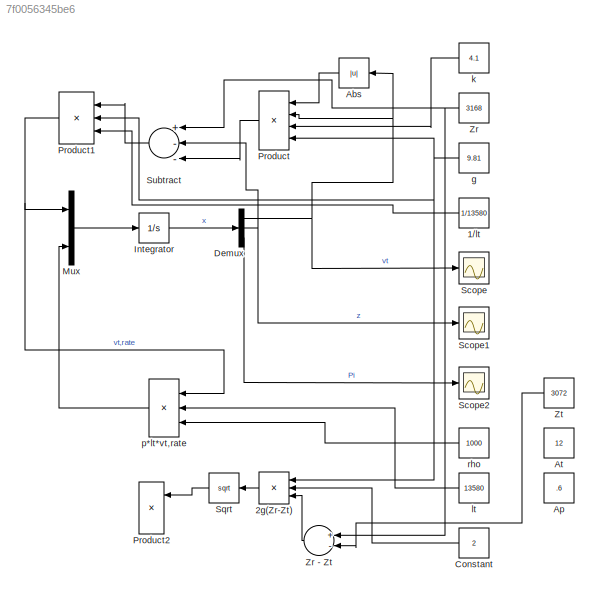
MODEL slx_7f0056345be6
KIND model
CONFIG AbsTol = auto
CONFIG FixedStep = auto
CONFIG MaxStep = auto
CONFIG MinStep = auto
CONFIG RelTol = 1e-3
CONFIG SampleTimeConstraint = Unconstrained
CONFIG Solver = ode45
CONFIG SolverMode = Auto
CONFIG SolverName = ode45
CONFIG StartTime = 0.0
CONFIG StopTime = 10.0
BLOCK [Constant] 1//lt
  Value = 1/13580
BLOCK [Product] 2g(Zr-Zt)
  InputSameDT = off
  Inputs = 3
  OutDataTypeStr = Inherit: Inherit via internal rule
  Ports = [3, 1]
  RndMeth = Floor
  SaturateOnIntegerOverflow = off
BLOCK [Abs] Abs
  SaturateOnIntegerOverflow = off
BLOCK [Constant] Ap
  Value = .6
BLOCK [Constant] At
  Value = 12
BLOCK [Constant] Constant
  Value = 2
BLOCK [Demux] Demux
  DisplayOption = bar
  Outputs = 3
  Ports = [1, 3]
BLOCK [Integrator] Integrator
  Ports = [1, 1]
BLOCK [Mux] Mux
  DisplayOption = bar
  Inputs = 3
  Ports = [3, 1]
BLOCK [Product] Product
  InputSameDT = off
  Inputs = 4
  OutDataTypeStr = Inherit: Inherit via internal rule
  Ports = [4, 1]
  RndMeth = Floor
  SaturateOnIntegerOverflow = off
BLOCK [Product] Product1
  InputSameDT = off
  Inputs = 3
  OutDataTypeStr = Inherit: Inherit via internal rule
  Ports = [3, 1]
  RndMeth = Floor
  SaturateOnIntegerOverflow = off
BLOCK [Product] Product2
  InputSameDT = off
  Inputs = 3
  OutDataTypeStr = Inherit: Inherit via internal rule
  Ports = [3, 1]
  RndMeth = Floor
  SaturateOnIntegerOverflow = off
BLOCK [Scope] Scope
  Floating = off
  NumInputPorts = 1
  Ports = [1]
BLOCK [Scope] Scope1
  Floating = off
  NumInputPorts = 1
  Ports = [1]
  SaveName = ScopeData1
BLOCK [Scope] Scope2
  Floating = off
  NumInputPorts = 1
  Ports = [1]
  SaveName = ScopeData2
BLOCK [Sqrt] Sqrt
BLOCK [Sum] Subtract
  InputSameDT = off
  Inputs = +--
  OutDataTypeStr = Inherit: Inherit via internal rule
  Ports = [3, 1]
  SaturateOnIntegerOverflow = off
BLOCK [Constant] Zr
  Value = 3168
BLOCK [Sum] Zr - Zt
  InputSameDT = off
  Inputs = +-
  OutDataTypeStr = Inherit: Inherit via internal rule
  Ports = [2, 1]
  SaturateOnIntegerOverflow = off
BLOCK [Constant] Zt
  Value = 3072
BLOCK [Constant] g
  Value = 9.81
BLOCK [Constant] k
  Value = 4.1
BLOCK [Constant] lt
  Value = 13580
BLOCK [Product] p*lt*vt,rate
  InputSameDT = off
  Inputs = 3
  OutDataTypeStr = Inherit: Inherit via internal rule
  Ports = [3, 1]
  RndMeth = Floor
  SaturateOnIntegerOverflow = off
BLOCK [Constant] rho
  Value = 1000
LINE 1//lt:1 -> Product1:3
LINE 2g(Zr-Zt):1 -> Sqrt:1
LINE Abs:1 -> Product:1
LINE Constant:1 -> 2g(Zr-Zt):2
NET Demux:1 -> Abs:1, Product:2, Scope:1
NET Demux:2 -> Scope1:1, Subtract:2
LINE Demux:3 -> Scope2:1
LINE Integrator:1 -> Demux:1
LINE Mux:1 -> Integrator:1
NET Product1:1 -> Mux:1, p*lt*vt,rate:1
LINE Product:1 -> Subtract:3
LINE Sqrt:1 -> Product2:1
LINE Subtract:1 -> Product1:1
LINE Zr - Zt:1 -> 2g(Zr-Zt):3
NET Zr:1 -> Subtract:1, Zr - Zt:1
LINE Zt:1 -> Zr - Zt:2
NET g:1 -> 2g(Zr-Zt):1, Product1:2, Product:4
LINE k:1 -> Product:3
LINE lt:1 -> p*lt*vt,rate:2
LINE p*lt*vt,rate:1 -> Mux:3
LINE rho:1 -> p*lt*vt,rate:3
note: NET lines group one-source signal fan-out (src -> all destinations, sorted); 1:1 wires keep LINE
